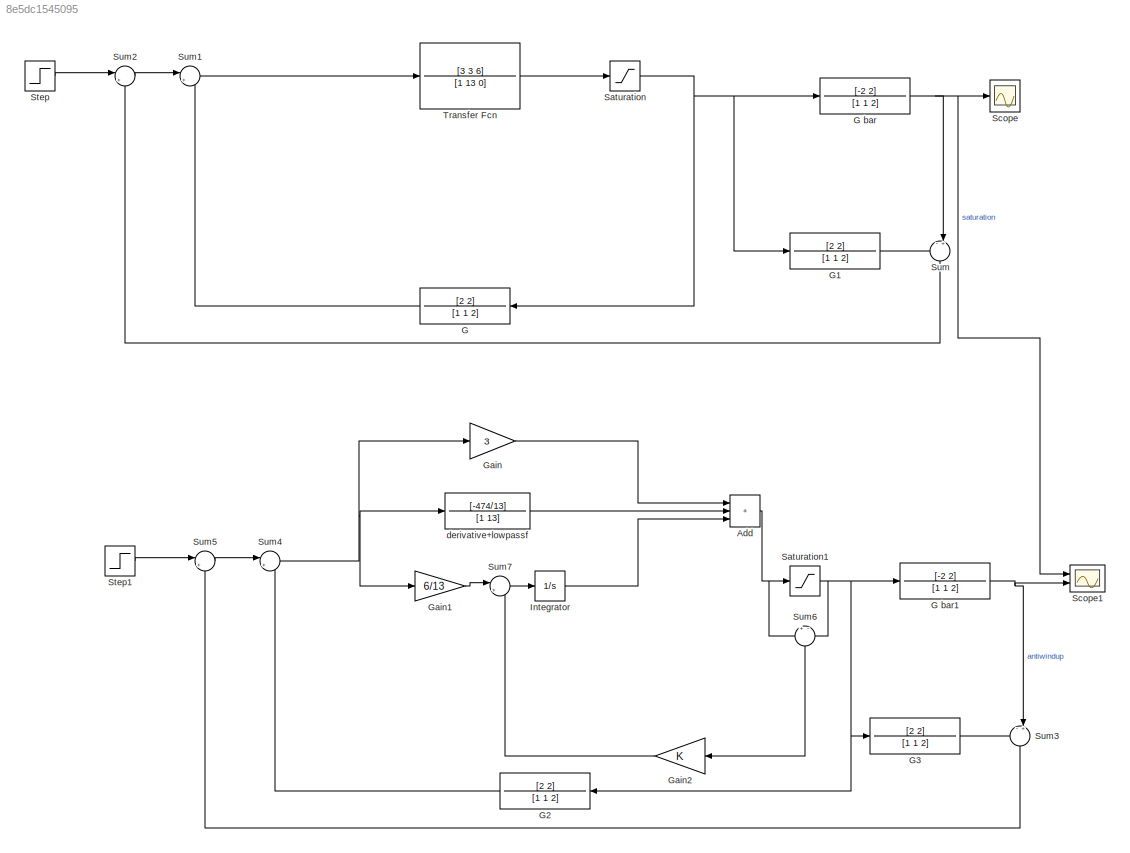
MODEL slx_8e5dc1545095
KIND model
CONFIG AbsTol = auto
CONFIG EnableMultiTasking = off
CONFIG FixedStep = auto
CONFIG MaxStep = auto
CONFIG MinStep = auto
CONFIG RelTol = 1e-3
CONFIG SampleTimeConstraint = Unconstrained
CONFIG Solver = VariableStepAuto
CONFIG SolverName = VariableStepAuto
CONFIG StartTime = 0.0
CONFIG StopTime = 10.0
BLOCK [Sum] Add
  IconShape = rectangular
  Inputs = +++
  NameLocation = left
  Ports = [3, 1]
BLOCK [TransferFcn] G
  Denominator = [1 1 2]
  NameLocation = top
  Numerator = [2 2]
BLOCK [TransferFcn] G bar
  Denominator = [1 1 2]
  Numerator = [-2 2]
BLOCK [TransferFcn] G bar1
  Denominator = [1 1 2]
  Numerator = [-2 2]
BLOCK [TransferFcn] G1
  Denominator = [1 1 2]
  Numerator = [2 2]
BLOCK [TransferFcn] G2
  Denominator = [1 1 2]
  NameLocation = top
  Numerator = [2 2]
BLOCK [TransferFcn] G3
  Denominator = [1 1 2]
  Numerator = [2 2]
BLOCK [Gain] Gain
  Gain = 3
BLOCK [Gain] Gain1
  Gain = 6/13
BLOCK [Gain] Gain2
  NameLocation = top
BLOCK [Integrator] Integrator
  Ports = [1, 1]
BLOCK [Saturate] Saturation
  LowerLimit = -1.5
  UpperLimit = 1.5
BLOCK [Saturate] Saturation1
  LowerLimit = -1.5
  UpperLimit = 1.5
BLOCK [Scope] Scope
  Floating = off
  NumInputPorts = 1
  Ports = [1]
  ScopeSpecificationString = Simulink.scopes.TimeScopeBlockCfg('CurrentConfiguration', extmgr.ConfigurationSet(extmgr.Configuration('Core','General UI',true),extmgr.Configuration('Core','Source UI',true),extmgr.Configuration('Sources','WiredSimulink',true),extmgr.Configuration('Visuals','Time Domain',true,'SerializedDisplays',{struct('MinYLimReal','-0.627','MaxYLimReal','1.19346','YLabelReal','','MinYLimMag','0.00000','MaxYLi...<+1326ch>
BLOCK [Scope] Scope1
  Floating = off
  NumInputPorts = 2
  Ports = [2]
  ScopeSpecificationString = Simulink.scopes.TimeScopeBlockCfg('CurrentConfiguration', extmgr.ConfigurationSet(extmgr.Configuration('Core','General UI',true),extmgr.Configuration('Core','Source UI',true),extmgr.Configuration('Sources','WiredSimulink',true,'DataLoggingVariableName','ScopeData1'),extmgr.Configuration('Visuals','Time Domain',true,'SerializedDisplays',{struct('MinYLimReal','-0.627','MaxYLimReal','1.19346','YLabel...<+1376ch>
BLOCK [Step] Step
  SampleTime = 0
  Time = 0
BLOCK [Step] Step1
  SampleTime = 0
  Time = 0
BLOCK [Sum] Sum
  Inputs = -+|
  NameLocation = left
  Ports = [2, 1]
BLOCK [Sum] Sum1
  Inputs = |+-
  Ports = [2, 1]
BLOCK [Sum] Sum2
  Inputs = |+-
  Ports = [2, 1]
BLOCK [Sum] Sum3
  Inputs = -+|
  NameLocation = left
  Ports = [2, 1]
BLOCK [Sum] Sum4
  Inputs = |+-
  Ports = [2, 1]
BLOCK [Sum] Sum5
  Inputs = |+-
  Ports = [2, 1]
BLOCK [Sum] Sum6
  Inputs = +-
  NameLocation = left
  Ports = [2, 1]
BLOCK [Sum] Sum7
  Inputs = |+-
  Ports = [2, 1]
BLOCK [TransferFcn] Transfer Fcn
  Denominator = [1 13 0]
  Numerator = [3 3 6]
BLOCK [TransferFcn] derivative+lowpassf
  Denominator = [1 13]
  Numerator = [-474/13]
NET Add:1 -> Saturation1:1, Sum6:1
NET G bar1:1 -> Scope1:2, Sum3:2
NET G bar:1 -> Scope1:1, Scope:1, Sum:2
LINE G1:1 -> Sum:1
LINE G2:1 -> Sum4:2
LINE G3:1 -> Sum3:1
LINE G:1 -> Sum1:2
LINE Gain1:1 -> Sum7:1
LINE Gain2:1 -> Sum7:2
LINE Gain:1 -> Add:1
LINE Integrator:1 -> Add:3
NET Saturation1:1 -> G bar1:1, G2:1, G3:1, Sum6:2
NET Saturation:1 -> G bar:1, G1:1, G:1
LINE Step1:1 -> Sum5:1
LINE Step:1 -> Sum2:1
LINE Sum1:1 -> Transfer Fcn:1
LINE Sum2:1 -> Sum1:1
LINE Sum3:1 -> Sum5:2
NET Sum4:1 -> Gain1:1, Gain:1, derivative+lowpassf:1
LINE Sum5:1 -> Sum4:1
LINE Sum6:1 -> Gain2:1
LINE Sum7:1 -> Integrator:1
LINE Sum:1 -> Sum2:2
LINE Transfer Fcn:1 -> Saturation:1
LINE derivative+lowpassf:1 -> Add:2
note: NET lines group one-source signal fan-out (src -> all destinations, sorted); 1:1 wires keep LINE
